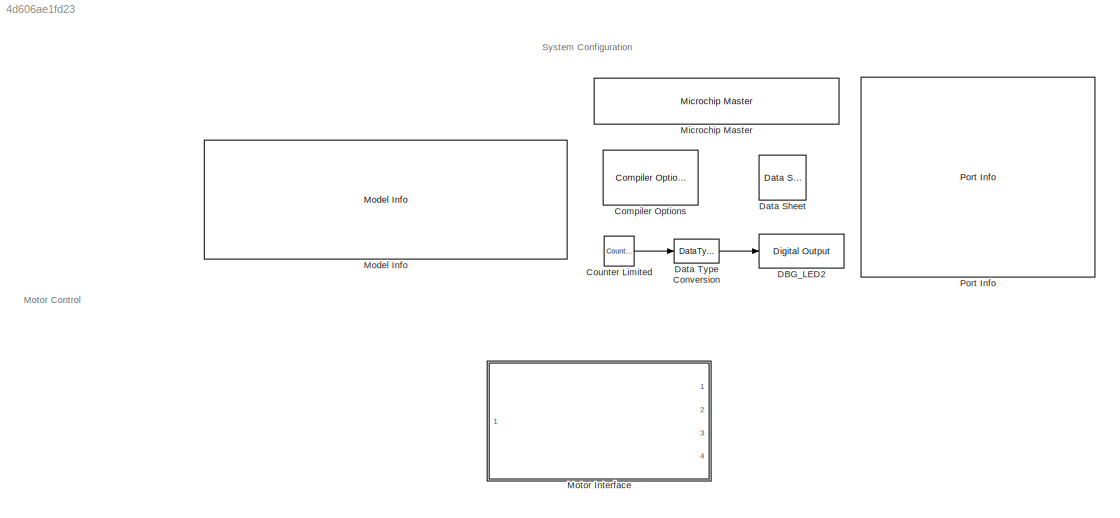
MODEL slx_4d606ae1fd23
KIND model
CONFIG AbsTol = auto
CONFIG EnableMultiTasking = on
CONFIG FixedStep = 1e-4
CONFIG MaxStep = 1e-4
CONFIG MinStep = auto
CONFIG RelTol = 1e-3
CONFIG SampleTimeConstraint = Unconstrained
CONFIG SolverName = FixedStepDiscrete
CONFIG StartTime = 0.0
CONFIG StopTime = 10.0
BLOCK [Reference] Compiler Options  REF=MCHP_Blockset/System Configuration/Compiler Options
  Ports = []
  Priority = 1
  SourceBlock = MCHP_Blockset/System Configuration/Compiler Options
  SourceProductName = MPLAB Device Blocks for Simulink
BLOCK [Reference] Counter Limited  REF=simulink/Sources/Counter
Limited
  Ports = [0, 1]
  SourceBlock = simulink/Sources/Counter\nLimited
  SourceProductBaseCode = SL
  SourceType = Counter Limited
BLOCK [Reference] DBG_LED2  REF=MCHP_Blockset/Digital IO/Digital Output
  Ports = [1]
  SourceBlock = MCHP_Blockset/Digital IO/Digital Output
  SourceProductName = MPLAB Device Blocks for Simulink
BLOCK [Reference] Data Sheet  REF=MCHP_Blockset/System Info/Data Sheet
  AttributesFormatString = %<cpy_MCHP_Id>
  Ports = []
  SourceBlock = MCHP_Blockset/System Info/Data Sheet
  SourceProductName = MPLAB Device Blocks for Simulink
BLOCK [DataTypeConversion] Data Type Conversion
  OutDataTypeStr = boolean
  RndMeth = Floor
  SaturateOnIntegerOverflow = off
BLOCK [Reference] Microchip Master  REF=MCHP_Blockset/System Configuration/Microchip Master
  Ports = []
  Priority = 1
  SourceBlock = MCHP_Blockset/System Configuration/Microchip Master
  SourceProductName = MPLAB Device Blocks for Simulink
BLOCK [Reference] Model Info  REF=simulink/Model-Wide
Utilities/Model Info
  Ports = []
  SourceBlock = simulink/Model-Wide\nUtilities/Model Info
  SourceProductBaseCode = SL
  SourceType = CMBlock
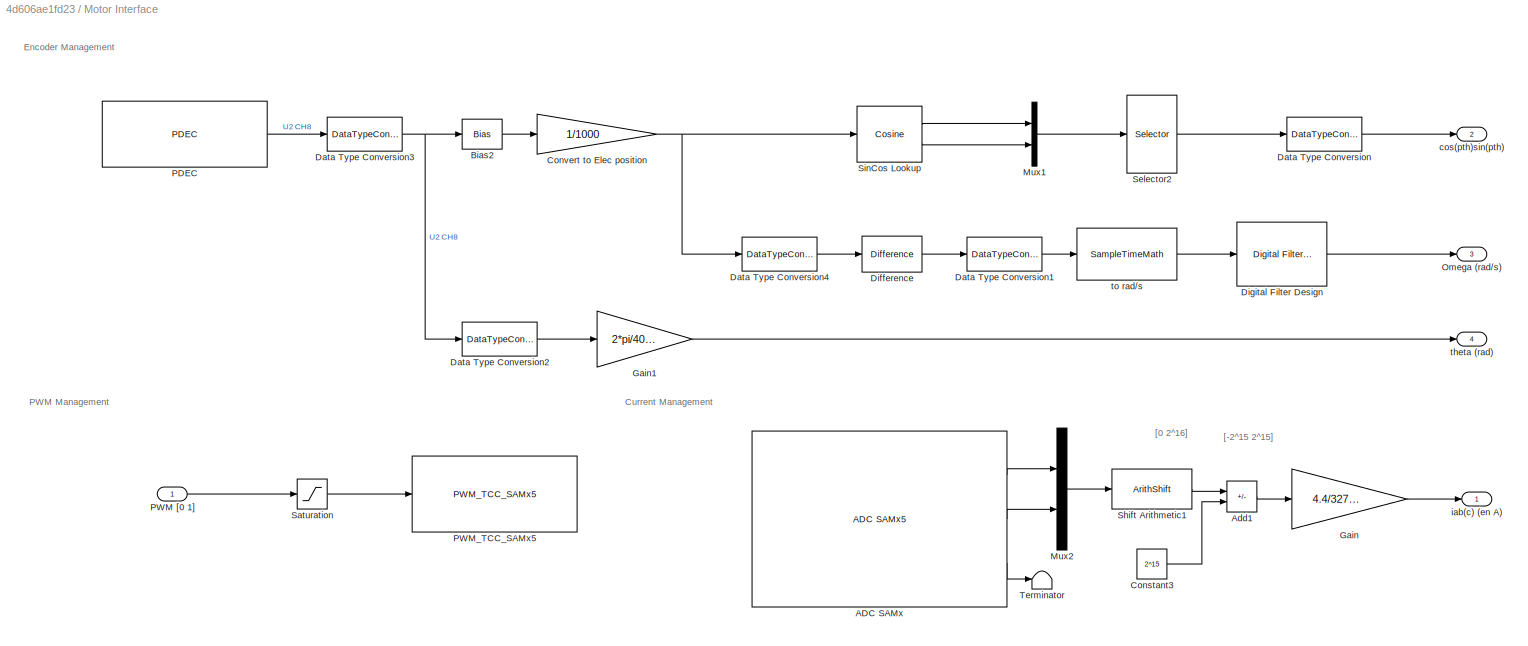
BLOCK [SubSystem] Motor Interface
  Ports = [1, 4]
  RequestExecContextInheritance = off
BLOCK [Reference] Motor Interface/ADC SAMx  REF=MCHP_Blockset/Analog IO/ADC SAMx5
  Ports = [0, 3]
  SourceBlock = MCHP_Blockset/Analog IO/ADC SAMx5
  SourceProductName = MPLAB Device Blocks for Simulink
  SourceType = ADC for SAM D5x / E5x
  UserDataPersistent = on
BLOCK [Sum] Motor Interface/Add1
  IconShape = rectangular
  Inputs = +-
  OutDataTypeStr = single
  Ports = [2, 1]
BLOCK [Bias] Motor Interface/Bias2
  Bias = 170
  SaturateOnIntegerOverflow = off
BLOCK [Constant] Motor Interface/Constant3
  OutDataTypeStr = fixdt(0,16,0)
  Value = 2^15
BLOCK [Gain] Motor Interface/Convert to Elec position
  Gain = 1/1000
  OutDataTypeStr = fixdt(0,16,16)
BLOCK [DataTypeConversion] Motor Interface/Data Type Conversion
  OutDataTypeStr = single
  RndMeth = Floor
  SaturateOnIntegerOverflow = off
BLOCK [DataTypeConversion] Motor Interface/Data Type Conversion1
  OutDataTypeStr = single
  RndMeth = Floor
  SaturateOnIntegerOverflow = off
BLOCK [DataTypeConversion] Motor Interface/Data Type Conversion2
  OutDataTypeStr = single
  RndMeth = Floor
  SaturateOnIntegerOverflow = off
BLOCK [DataTypeConversion] Motor Interface/Data Type Conversion3
  ConvertRealWorld = Stored Integer (SI)
  OutDataTypeStr = int16
  RndMeth = Floor
  SaturateOnIntegerOverflow = off
BLOCK [DataTypeConversion] Motor Interface/Data Type Conversion4
  ConvertRealWorld = Stored Integer (SI)
  OutDataTypeStr = fixdt(1,16,16)
  RndMeth = Floor
  SaturateOnIntegerOverflow = off
BLOCK [Reference] Motor Interface/Difference  REF=simulink/Discrete/Difference
  Ports = [1, 1]
  SourceBlock = simulink/Discrete/Difference
  SourceProductBaseCode = SL
  SourceType = Difference
BLOCK [Reference] Motor Interface/Digital Filter Design  REF=dsparch4/Digital
Filter Design
  Ports = [1, 1]
  SourceBlock = dsparch4/Digital\nFilter Design
  SourceProductBaseCode = DS
  SourceType = Digital Filter Design
  UserDataPersistent = on
BLOCK [Gain] Motor Interface/Gain
  Gain = 4.4/32768
BLOCK [Gain] Motor Interface/Gain1
  Gain = 2*pi/4000
BLOCK [Mux] Motor Interface/Mux1
  DisplayOption = bar
  Inputs = 2
  Ports = [2, 1]
BLOCK [Mux] Motor Interface/Mux2
  DisplayOption = bar
  Inputs = 2
  Ports = [2, 1]
BLOCK [Outport] Motor Interface/Omega (rad//s)
  Port = 3
  PortDimensions = 1
  VectorParamsAs1DForOutWhenUnconnected = off
BLOCK [Reference] Motor Interface/PDEC  REF=MCHP_Blockset/QEI/PDEC
  Ports = [0, 1]
  SourceBlock = MCHP_Blockset/QEI/PDEC
  SourceProductName = MPLAB Device Blocks for Simulink
  SourceType = PDEC
  UserDataPersistent = on
BLOCK [Inport] Motor Interface/PWM [0 1]
BLOCK [Reference] Motor Interface/PWM_TCC_SAMx5  REF=MCHP_Blockset/PWM IO/PWM_TCC_SAMx5
  Ports = [1]
  SourceBlock = MCHP_Blockset/PWM IO/PWM_TCC_SAMx5
  SourceProductName = MPLAB Device Blocks for Simulink
  SourceType = PWM - TCC
  UserDataPersistent = on
BLOCK [Saturate] Motor Interface/Saturation
  LinearizeAsGain = off
  LowerLimit = 0.02
  OutDataTypeStr = double
  UpperLimit = 0.98
BLOCK [Selector] Motor Interface/Selector2
  IndexOptions = Index vector (dialog)
  Indices = [2 1]
  InputPortWidth = 2
  OutputSizes = 1
  Ports = [1, 1]
BLOCK [ArithShift] Motor Interface/Shift Arithmetic1
  BitShiftDirection = Left
  BitShiftNumber = 4
  InputPortMap = u0
  Ports = [1, 1]
BLOCK [Reference] Motor Interface/SinCos Lookup  REF=simulink/Lookup
Tables/Cosine
  Ports = [1, 2]
  SourceBlock = simulink/Lookup\nTables/Cosine
  SourceProductBaseCode = SL
  SourceType = Sine and Cosine
BLOCK [Terminator] Motor Interface/Terminator
BLOCK [Outport] Motor Interface/cos(pth)sin(pth)
  Port = 2
  VectorParamsAs1DForOutWhenUnconnected = off
BLOCK [Outport] Motor Interface/iab(c) (en A)
  VectorParamsAs1DForOutWhenUnconnected = off
BLOCK [Outport] Motor Interface/theta (rad)
  Port = 4
  VectorParamsAs1DForOutWhenUnconnected = off
BLOCK [SampleTimeMath] Motor Interface/to rad//s
  TsampMathOp = /
  weightValue = 4/(2*pi)
BLOCK [Reference] Port Info  REF=MCHP_Blockset/System Info/Port Info
  Ports = []
  SourceBlock = MCHP_Blockset/System Info/Port Info
  SourceProductName = MPLAB Device Blocks for Simulink
ANNOTATION (root): Motor Control
ANNOTATION (root): System Configuration
ANNOTATION Motor Interface: Current Management
ANNOTATION Motor Interface: Encoder Management
ANNOTATION Motor Interface: PWM Management
ANNOTATION Motor Interface: [-2^15 2^15]
ANNOTATION Motor Interface: [0 2^16]
LINE Counter Limited:1 -> Data Type Conversion:1
LINE Data Type Conversion:1 -> DBG_LED2:1
LINE Motor Interface/ADC SAMx:1 -> Motor Interface/Mux2:1
LINE Motor Interface/ADC SAMx:2 -> Motor Interface/Mux2:2
LINE Motor Interface/ADC SAMx:3 -> Motor Interface/Terminator:1
LINE Motor Interface/Add1:1 -> Motor Interface/Gain:1
LINE Motor Interface/Bias2:1 -> Motor Interface/Convert to Elec position:1
LINE Motor Interface/Constant3:1 -> Motor Interface/Add1:2
NET Motor Interface/Convert to Elec position:1 -> Motor Interface/Data Type Conversion4:1, Motor Interface/SinCos Lookup:1
LINE Motor Interface/Data Type Conversion1:1 -> Motor Interface/to rad//s:1
LINE Motor Interface/Data Type Conversion2:1 -> Motor Interface/Gain1:1
NET Motor Interface/Data Type Conversion3:1 -> Motor Interface/Bias2:1, Motor Interface/Data Type Conversion2:1
LINE Motor Interface/Data Type Conversion4:1 -> Motor Interface/Difference:1
LINE Motor Interface/Data Type Conversion:1 -> Motor Interface/cos(pth)sin(pth):1
LINE Motor Interface/Difference:1 -> Motor Interface/Data Type Conversion1:1
LINE Motor Interface/Digital Filter Design:1 -> Motor Interface/Omega (rad//s):1
LINE Motor Interface/Gain1:1 -> Motor Interface/theta (rad):1
LINE Motor Interface/Gain:1 -> Motor Interface/iab(c) (en A):1
LINE Motor Interface/Mux1:1 -> Motor Interface/Selector2:1
LINE Motor Interface/Mux2:1 -> Motor Interface/Shift Arithmetic1:1
LINE Motor Interface/PDEC:1 -> Motor Interface/Data Type Conversion3:1
LINE Motor Interface/PWM [0 1]:1 -> Motor Interface/Saturation:1
LINE Motor Interface/Saturation:1 -> Motor Interface/PWM_TCC_SAMx5:1
LINE Motor Interface/Selector2:1 -> Motor Interface/Data Type Conversion:1
LINE Motor Interface/Shift Arithmetic1:1 -> Motor Interface/Add1:1
LINE Motor Interface/SinCos Lookup:1 -> Motor Interface/Mux1:1
LINE Motor Interface/SinCos Lookup:2 -> Motor Interface/Mux1:2
LINE Motor Interface/to rad//s:1 -> Motor Interface/Digital Filter Design:1
note: NET lines group one-source signal fan-out (src -> all destinations, sorted); 1:1 wires keep LINE
